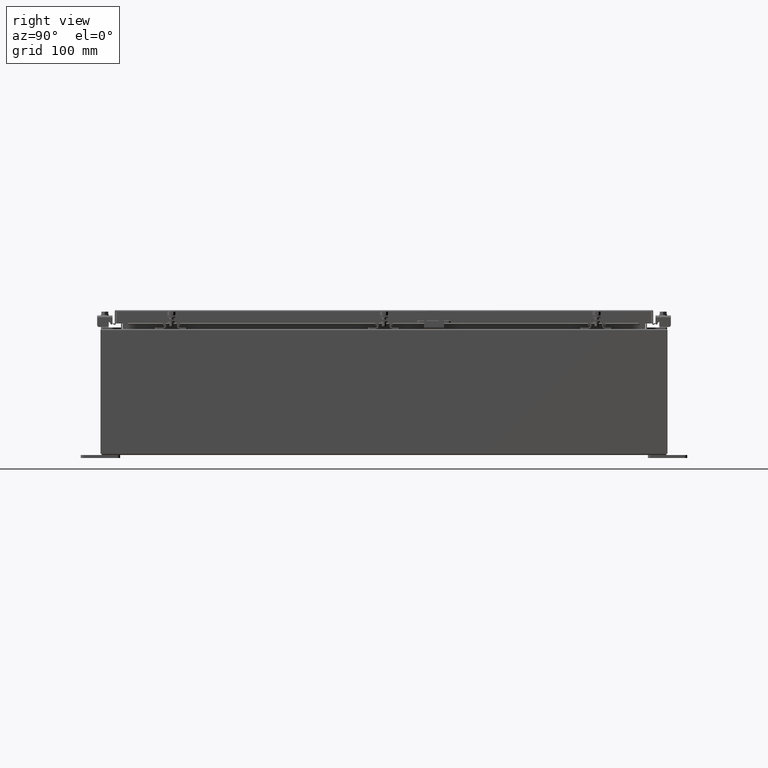
[diagram: clean part render]
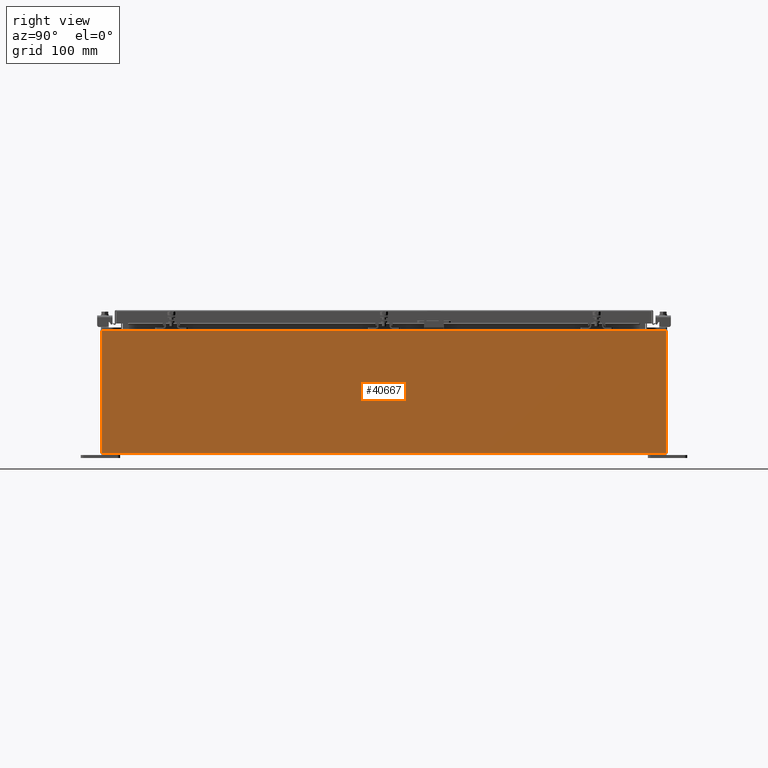
[diagram: same view with one face highlighted and labeled with its STEP entity id]
A machine part, right view. The second image highlights one B-rep face of the part: STEP entity #40667.
In plain terms, the highlighted planar face has unit normal (-1, 0, 0).
Its self-contained STEP definition (entity closure, byte-faithful):
#92 = CARTESIAN_POINT ( 'NONE',  ( 12.00000000000000200, 17.92529999999999600, 0.01300000000000203200 ) ) ;
#1797 = VERTEX_POINT ( 'NONE', #16137 ) ;
#2170 = LINE ( 'NONE', #30966, #19357 ) ;
#5383 = VECTOR ( 'NONE', #40765, 39.37007874015748100 ) ;
#5985 = ORIENTED_EDGE ( 'NONE', *, *, #16659, .T. ) ;
#6388 = LINE ( 'NONE', #8228, #5383 ) ;
#8228 = CARTESIAN_POINT ( 'NONE',  ( 12.00000000000000200, -17.92530000000000400, -4.327932773236201900E-014 ) ) ;
#9430 = PLANE ( 'NONE',  #31031 ) ;
#11004 = ORIENTED_EDGE ( 'NONE', *, *, #39558, .T. ) ;
#11487 = DIRECTION ( 'NONE',  ( 3.584876173029202900E-015, 0.0000000000000000000, 1.000000000000000000 ) ) ;
#15743 = LINE ( 'NONE', #28722, #40697 ) ;
#15940 = DIRECTION ( 'NONE',  ( 3.584876173029202900E-015, 0.0000000000000000000, 1.000000000000000000 ) ) ;
#16137 = CARTESIAN_POINT ( 'NONE',  ( 12.00000000000000200, -17.92530000000000400, 0.01299999999999945600 ) ) ;
#16659 = EDGE_CURVE ( 'NONE', #28925, #1797, #6388, .T. ) ;
#18100 = CARTESIAN_POINT ( 'NONE',  ( 12.00000000000003000, 17.92530000000000000, 7.837599999999992100 ) ) ;
#19357 = VECTOR ( 'NONE', #11487, 39.37007874015748100 ) ;
#21380 = EDGE_LOOP ( 'NONE', ( #11004, #5985, #41637, #38779 ) ) ;
#25457 = DIRECTION ( 'NONE',  ( -0.0000000000000000000, -1.000000000000000000, -0.0000000000000000000 ) ) ;
#26825 = VERTEX_POINT ( 'NONE', #18100 ) ;
#27274 = CARTESIAN_POINT ( 'NONE',  ( 12.00000000000000200, -17.92530000000000400, 0.01299999999999984700 ) ) ;
#28140 = EDGE_CURVE ( 'NONE', #36486, #26825, #2170, .T. ) ;
#28722 = CARTESIAN_POINT ( 'NONE',  ( 12.00000000000003000, 17.92530000000000000, 7.837599999999992100 ) ) ;
#28925 = VERTEX_POINT ( 'NONE', #38023 ) ;
#30529 = DIRECTION ( 'NONE',  ( -2.185366332686126200E-031, -1.000000000000000000, -6.096072018129156600E-017 ) ) ;
#30966 = CARTESIAN_POINT ( 'NONE',  ( 12.00000000000000200, 17.92529999999999600, -4.327932773236201900E-014 ) ) ;
#31031 = AXIS2_PLACEMENT_3D ( 'NONE', #32175, #35467, #15940 ) ;
#32175 = CARTESIAN_POINT ( 'NONE',  ( 12.00000000000000200, 0.0000000000000000000, -4.327932773236201900E-014 ) ) ;
#34463 = EDGE_CURVE ( 'NONE', #36486, #1797, #38524, .T. ) ;
#35467 = DIRECTION ( 'NONE',  ( -1.000000000000000000, 0.0000000000000000000, 3.584876173029202900E-015 ) ) ;
#36486 = VERTEX_POINT ( 'NONE', #92 ) ;
#37333 = FACE_OUTER_BOUND ( 'NONE', #21380, .T. ) ;
#37510 = VECTOR ( 'NONE', #30529, 39.37007874015748100 ) ;
#38023 = CARTESIAN_POINT ( 'NONE',  ( 12.00000000000003000, -17.92530000000000000, 7.837599999999998300 ) ) ;
#38524 = LINE ( 'NONE', #27274, #37510 ) ;
#38779 = ORIENTED_EDGE ( 'NONE', *, *, #28140, .T. ) ;
#39558 = EDGE_CURVE ( 'NONE', #26825, #28925, #15743, .T. ) ;
#40667 = ADVANCED_FACE ( 'NONE', ( #37333 ), #9430, .F. ) ;
#40697 = VECTOR ( 'NONE', #25457, 39.37007874015748100 ) ;
#40765 = DIRECTION ( 'NONE',  ( -3.584876173029202900E-015, 0.0000000000000000000, -1.000000000000000000 ) ) ;
#41637 = ORIENTED_EDGE ( 'NONE', *, *, #34463, .F. ) ;